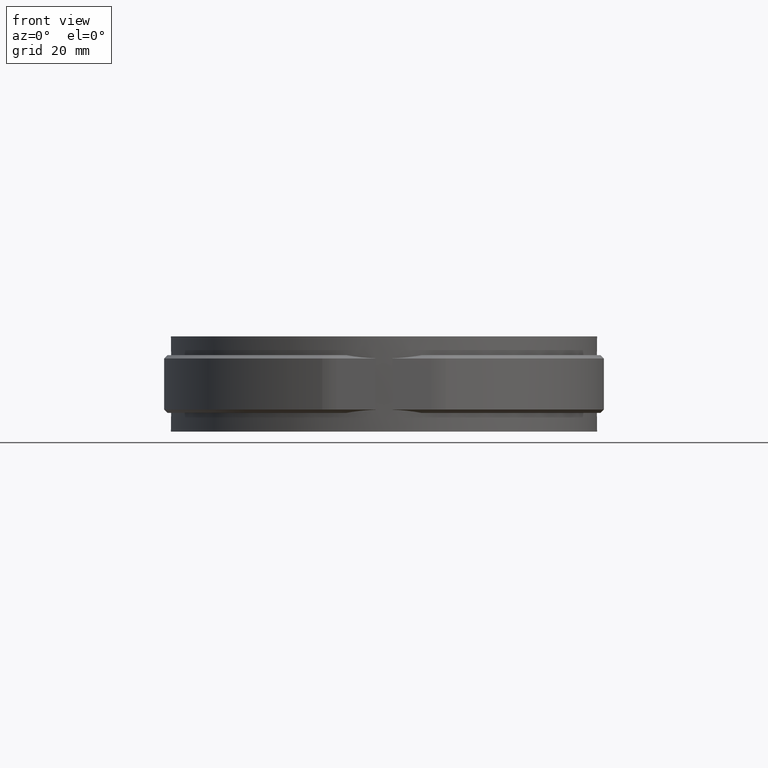
[diagram: clean part render]
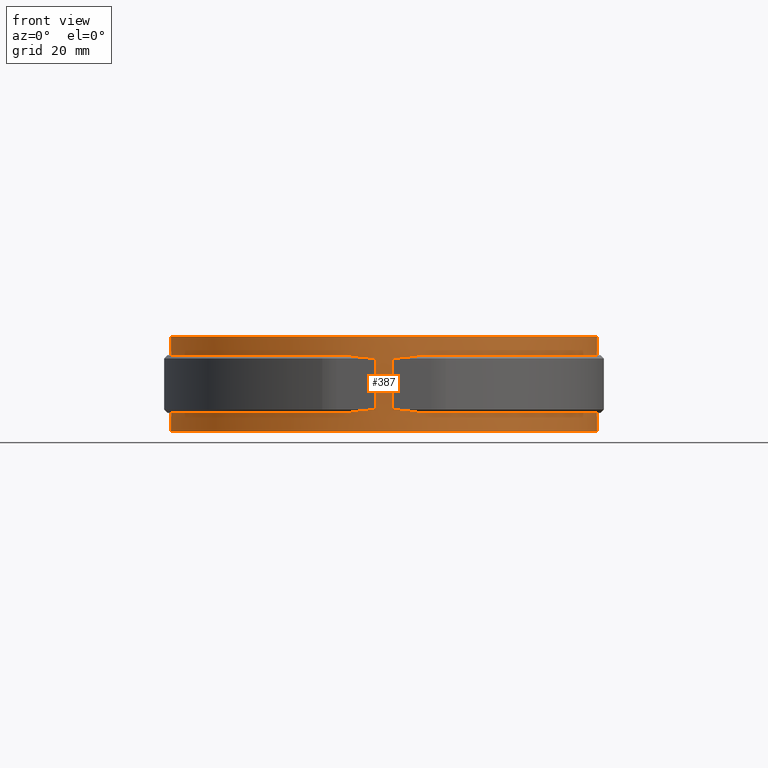
[diagram: same view with one face highlighted and labeled with its STEP entity id]
A machine part, front view. The second image highlights one B-rep face of the part: STEP entity #387.
In plain terms, the highlighted cylindrical surface (partial cylindrical patch) has radius 62.65 mm, axis along (0, 0, -1).
Its self-contained STEP definition (entity closure, byte-faithful):
#387 = ADVANCED_FACE( '', ( #663 ), #664, .T. );
#663 = FACE_OUTER_BOUND( '', #1439, .T. );
#664 = CYLINDRICAL_SURFACE( '', #1440, 62.6500000000000 );
#1439 = EDGE_LOOP( '', ( #2910, #2911, #2912, #2913, #2914, #2915, #2916, #2917, #2918, #2919, #2920, #2921, #2922, #2923, #2924, #2925 ) );
#1440 = AXIS2_PLACEMENT_3D( '', #2926, #2927, #2928 );
#2910 = ORIENTED_EDGE( '', *, *, #4054, .T. );
#2911 = ORIENTED_EDGE( '', *, *, #4055, .T. );
#2912 = ORIENTED_EDGE( '', *, *, #4056, .T. );
#2913 = ORIENTED_EDGE( '', *, *, #4057, .F. );
#2914 = ORIENTED_EDGE( '', *, *, #4058, .T. );
#2915 = ORIENTED_EDGE( '', *, *, #4059, .F. );
#2916 = ORIENTED_EDGE( '', *, *, #4060, .T. );
#2917 = ORIENTED_EDGE( '', *, *, #4061, .F. );
#2918 = ORIENTED_EDGE( '', *, *, #4062, .F. );
#2919 = ORIENTED_EDGE( '', *, *, #4063, .F. );
#2920 = ORIENTED_EDGE( '', *, *, #4064, .T. );
#2921 = ORIENTED_EDGE( '', *, *, #4065, .F. );
#2922 = ORIENTED_EDGE( '', *, *, #4066, .T. );
#2923 = ORIENTED_EDGE( '', *, *, #4067, .T. );
#2924 = ORIENTED_EDGE( '', *, *, #4068, .F. );
#2925 = ORIENTED_EDGE( '', *, *, #4069, .T. );
#2926 = CARTESIAN_POINT( '', ( 6.93889390390723E-015, 5.55111512312578E-014, -14.0000000000000 ) );
#2927 = DIRECTION( '', ( 0.000000000000000, 0.000000000000000, -1.00000000000000 ) );
#2928 = DIRECTION( '', ( -0.112630732099760, -0.993636914665851, 0.000000000000000 ) );
#4054 = EDGE_CURVE( '', #4691, #4692, #4693, .T. );
#4055 = EDGE_CURVE( '', #4692, #4694, #4695, .F. );
#4056 = EDGE_CURVE( '', #4694, #4696, #4697, .T. );
#4057 = EDGE_CURVE( '', #4698, #4696, #4699, .F. );
#4058 = EDGE_CURVE( '', #4698, #4700, #4701, .F. );
#4059 = EDGE_CURVE( '', #4702, #4700, #4703, .F. );
#4060 = EDGE_CURVE( '', #4702, #4704, #4705, .T. );
#4061 = EDGE_CURVE( '', #4706, #4704, #4707, .T. );
#4062 = EDGE_CURVE( '', #4708, #4706, #4709, .T. );
#4063 = EDGE_CURVE( '', #4710, #4708, #4711, .F. );
#4064 = EDGE_CURVE( '', #4710, #4712, #4713, .F. );
#4065 = EDGE_CURVE( '', #4714, #4712, #4715, .T. );
#4066 = EDGE_CURVE( '', #4714, #4716, #4717, .T. );
#4067 = EDGE_CURVE( '', #4716, #4718, #4719, .F. );
#4068 = EDGE_CURVE( '', #4720, #4718, #4721, .T. );
#4069 = EDGE_CURVE( '', #4720, #4691, #4722, .T. );
#4691 = VERTEX_POINT( '', #7098 );
#4692 = VERTEX_POINT( '', #7099 );
#4693 = LINE( '', #7100, #7101 );
#4694 = VERTEX_POINT( '', #7102 );
#4695 = CIRCLE( '', #7103, 62.6500000000000 );
#4696 = VERTEX_POINT( '', #7104 );
#4697 = ELLIPSE( '', #7105, 88.6004796826743, 62.6500000000000 );
#4698 = VERTEX_POINT( '', #7106 );
#4699 = LINE( '', #7107, #7108 );
#4700 = VERTEX_POINT( '', #7109 );
#4701 = ELLIPSE( '', #7110, 88.6004796826744, 62.6500000000000 );
#4702 = VERTEX_POINT( '', #7111 );
#4703 = CIRCLE( '', #7112, 62.6500000000000 );
#4704 = VERTEX_POINT( '', #7113 );
#4705 = LINE( '', #7114, #7115 );
#4706 = VERTEX_POINT( '', #7116 );
#4707 = CIRCLE( '', #7117, 62.6500000000000 );
#4708 = VERTEX_POINT( '', #7118 );
#4709 = LINE( '', #7119, #7120 );
#4710 = VERTEX_POINT( '', #7121 );
#4711 = CIRCLE( '', #7122, 62.6500000000000 );
#4712 = VERTEX_POINT( '', #7123 );
#4713 = ELLIPSE( '', #7124, 88.6004796826744, 62.6500000000000 );
#4714 = VERTEX_POINT( '', #7125 );
#4715 = LINE( '', #7126, #7127 );
#4716 = VERTEX_POINT( '', #7128 );
#4717 = ELLIPSE( '', #7129, 88.6004796826743, 62.6500000000000 );
#4718 = VERTEX_POINT( '', #7130 );
#4719 = CIRCLE( '', #7131, 62.6500000000000 );
#4720 = VERTEX_POINT( '', #7132 );
#4721 = LINE( '', #7133, #7134 );
#4722 = CIRCLE( '', #7135, 62.6500000000000 );
#7098 = CARTESIAN_POINT( '', ( 5.99999999999996, 62.3620277091757, -14.0000000000000 ) );
#7099 = CARTESIAN_POINT( '', ( 5.99999999999996, 62.3620277091757, -8.50000000000000 ) );
#7100 = CARTESIAN_POINT( '', ( 5.99999999999996, 62.3620277091757, -14.0000000000000 ) );
#7101 = VECTOR( '', #8288, 1000.00000000000 );
#7102 = CARTESIAN_POINT( '', ( 11.1489909857347, -61.6500000000000, -8.50000000000000 ) );
#7103 = AXIS2_PLACEMENT_3D( '', #8289, #8290, #8291 );
#7104 = CARTESIAN_POINT( '', ( 2.50000000000000, -62.6000998401759, -7.54990015982408 ) );
#7105 = AXIS2_PLACEMENT_3D( '', #8292, #8293, #8294 );
#7106 = CARTESIAN_POINT( '', ( 2.50000000000000, -62.6000998401759, 7.54990015982407 ) );
#7107 = CARTESIAN_POINT( '', ( 2.50000000000000, -62.6000998401759, -14.0000000000000 ) );
#7108 = VECTOR( '', #8295, 1000.00000000000 );
#7109 = CARTESIAN_POINT( '', ( 11.1489909857347, -61.6500000000000, 8.50000000000001 ) );
#7110 = AXIS2_PLACEMENT_3D( '', #8296, #8297, #8298 );
#7111 = CARTESIAN_POINT( '', ( 6.00000000000001, 62.3620277091757, 8.50000000000000 ) );
#7112 = AXIS2_PLACEMENT_3D( '', #8299, #8300, #8301 );
#7113 = CARTESIAN_POINT( '', ( 5.99999999999996, 62.3620277091757, 14.0000000000000 ) );
#7114 = CARTESIAN_POINT( '', ( 5.99999999999996, 62.3620277091757, -14.0000000000000 ) );
#7115 = VECTOR( '', #8302, 1000.00000000000 );
#7116 = CARTESIAN_POINT( '', ( -6.00000000000000, 62.3620277091758, 14.0000000000000 ) );
#7117 = AXIS2_PLACEMENT_3D( '', #8303, #8304, #8305 );
#7118 = CARTESIAN_POINT( '', ( -6.00000000000000, 62.3620277091758, 8.50000000000001 ) );
#7119 = CARTESIAN_POINT( '', ( -6.00000000000000, 62.3620277091758, -14.0000000000000 ) );
#7120 = VECTOR( '', #8306, 1000.00000000000 );
#7121 = CARTESIAN_POINT( '', ( -11.1489909857347, -61.6500000000000, 8.50000000000001 ) );
#7122 = AXIS2_PLACEMENT_3D( '', #8307, #8308, #8309 );
#7123 = CARTESIAN_POINT( '', ( -2.50000000000000, -62.6000998401759, 7.54990015982407 ) );
#7124 = AXIS2_PLACEMENT_3D( '', #8310, #8311, #8312 );
#7125 = CARTESIAN_POINT( '', ( -2.50000000000000, -62.6000998401759, -7.54990015982408 ) );
#7126 = CARTESIAN_POINT( '', ( -2.50000000000000, -62.6000998401759, -14.0000000000000 ) );
#7127 = VECTOR( '', #8313, 1000.00000000000 );
#7128 = CARTESIAN_POINT( '', ( -11.1489909857347, -61.6500000000000, -8.50000000000000 ) );
#7129 = AXIS2_PLACEMENT_3D( '', #8314, #8315, #8316 );
#7130 = CARTESIAN_POINT( '', ( -6.00000000000000, 62.3620277091758, -8.50000000000000 ) );
#7131 = AXIS2_PLACEMENT_3D( '', #8317, #8318, #8319 );
#7132 = CARTESIAN_POINT( '', ( -6.00000000000000, 62.3620277091758, -14.0000000000000 ) );
#7133 = CARTESIAN_POINT( '', ( -6.00000000000000, 62.3620277091758, -14.0000000000000 ) );
#7134 = VECTOR( '', #8320, 1000.00000000000 );
#7135 = AXIS2_PLACEMENT_3D( '', #8321, #8322, #8323 );
#8288 = DIRECTION( '', ( 0.000000000000000, 0.000000000000000, 1.00000000000000 ) );
#8289 = CARTESIAN_POINT( '', ( 6.93889390390723E-015, 5.55111512312578E-014, -8.50000000000000 ) );
#8290 = DIRECTION( '', ( 0.000000000000000, 0.000000000000000, 1.00000000000000 ) );
#8291 = DIRECTION( '', ( 1.00000000000000, 0.000000000000000, 0.000000000000000 ) );
#8292 = CARTESIAN_POINT( '', ( 6.93889390390723E-015, 5.55111512312578E-014, -70.1499999999999 ) );
#8293 = DIRECTION( '', ( -9.81307786677359E-018, -0.707106781186547, -0.707106781186548 ) );
#8294 = DIRECTION( '', ( -9.81307786677360E-018, -0.707106781186548, 0.707106781186547 ) );
#8295 = DIRECTION( '', ( 0.000000000000000, 0.000000000000000, 1.00000000000000 ) );
#8296 = CARTESIAN_POINT( '', ( 6.93889390390723E-015, 5.55111512312578E-014, 70.1500000000000 ) );
#8297 = DIRECTION( '', ( 9.81307786677360E-018, 0.707106781186548, -0.707106781186547 ) );
#8298 = DIRECTION( '', ( 9.81307786677359E-018, 0.707106781186547, 0.707106781186548 ) );
#8299 = CARTESIAN_POINT( '', ( 6.93889390390723E-015, 5.55111512312578E-014, 8.50000000000001 ) );
#8300 = DIRECTION( '', ( 0.000000000000000, 0.000000000000000, 1.00000000000000 ) );
#8301 = DIRECTION( '', ( 1.00000000000000, 0.000000000000000, 0.000000000000000 ) );
#8302 = DIRECTION( '', ( 0.000000000000000, 0.000000000000000, 1.00000000000000 ) );
#8303 = CARTESIAN_POINT( '', ( 6.93889390390723E-015, 5.55111512312578E-014, 14.0000000000000 ) );
#8304 = DIRECTION( '', ( 0.000000000000000, 0.000000000000000, 1.00000000000000 ) );
#8305 = DIRECTION( '', ( 1.00000000000000, -1.38777878078145E-017, 0.000000000000000 ) );
#8306 = DIRECTION( '', ( 0.000000000000000, 0.000000000000000, 1.00000000000000 ) );
#8307 = CARTESIAN_POINT( '', ( 6.93889390390723E-015, 5.55111512312578E-014, 8.50000000000001 ) );
#8308 = DIRECTION( '', ( 0.000000000000000, 0.000000000000000, 1.00000000000000 ) );
#8309 = DIRECTION( '', ( 1.00000000000000, 0.000000000000000, 0.000000000000000 ) );
#8310 = CARTESIAN_POINT( '', ( 6.93889390390723E-015, 5.55111512312578E-014, 70.1500000000000 ) );
#8311 = DIRECTION( '', ( -9.81307786677360E-018, 0.707106781186548, -0.707106781186547 ) );
#8312 = DIRECTION( '', ( -9.81307786677359E-018, 0.707106781186547, 0.707106781186548 ) );
#8313 = DIRECTION( '', ( 0.000000000000000, 0.000000000000000, 1.00000000000000 ) );
#8314 = CARTESIAN_POINT( '', ( 6.93889390390723E-015, 5.55111512312578E-014, -70.1499999999999 ) );
#8315 = DIRECTION( '', ( 9.81307786677359E-018, -0.707106781186547, -0.707106781186548 ) );
#8316 = DIRECTION( '', ( 9.81307786677360E-018, -0.707106781186548, 0.707106781186547 ) );
#8317 = CARTESIAN_POINT( '', ( 6.93889390390723E-015, 5.55111512312578E-014, -8.50000000000000 ) );
#8318 = DIRECTION( '', ( 0.000000000000000, 0.000000000000000, 1.00000000000000 ) );
#8319 = DIRECTION( '', ( 1.00000000000000, 0.000000000000000, 0.000000000000000 ) );
#8320 = DIRECTION( '', ( 0.000000000000000, 0.000000000000000, 1.00000000000000 ) );
#8321 = CARTESIAN_POINT( '', ( 6.93889390390723E-015, 5.55111512312578E-014, -14.0000000000000 ) );
#8322 = DIRECTION( '', ( 0.000000000000000, 0.000000000000000, 1.00000000000000 ) );
#8323 = DIRECTION( '', ( 1.00000000000000, -1.38777878078145E-017, 0.000000000000000 ) );